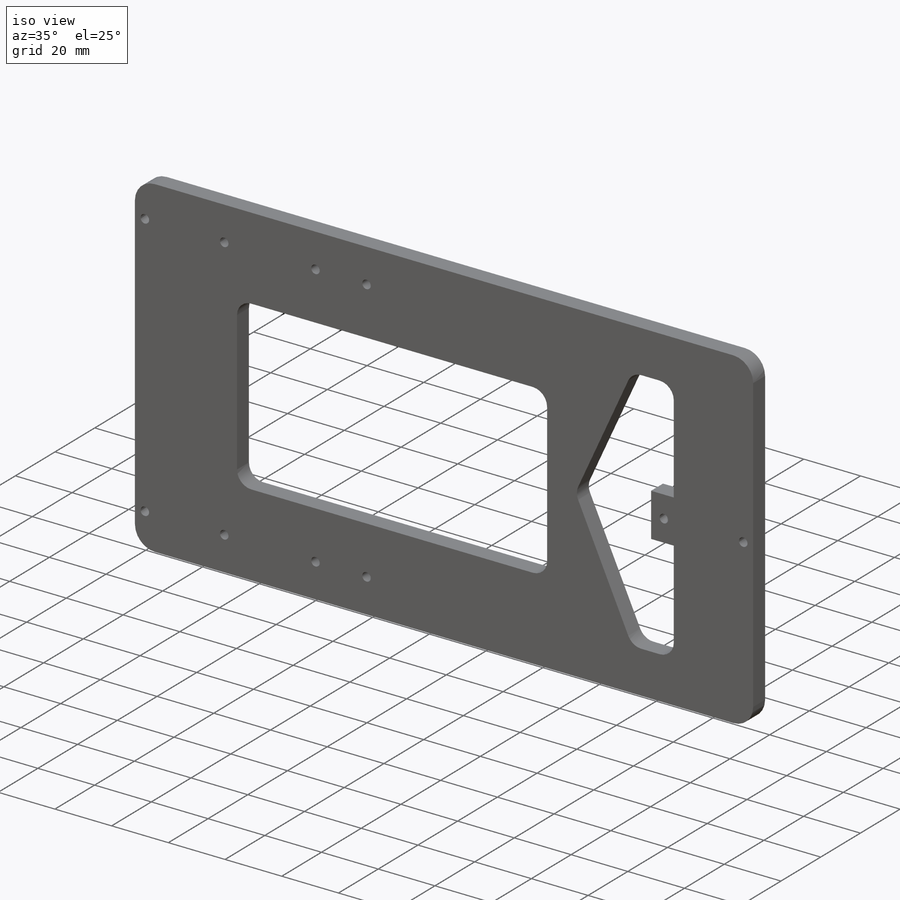
[diagram: iso view]
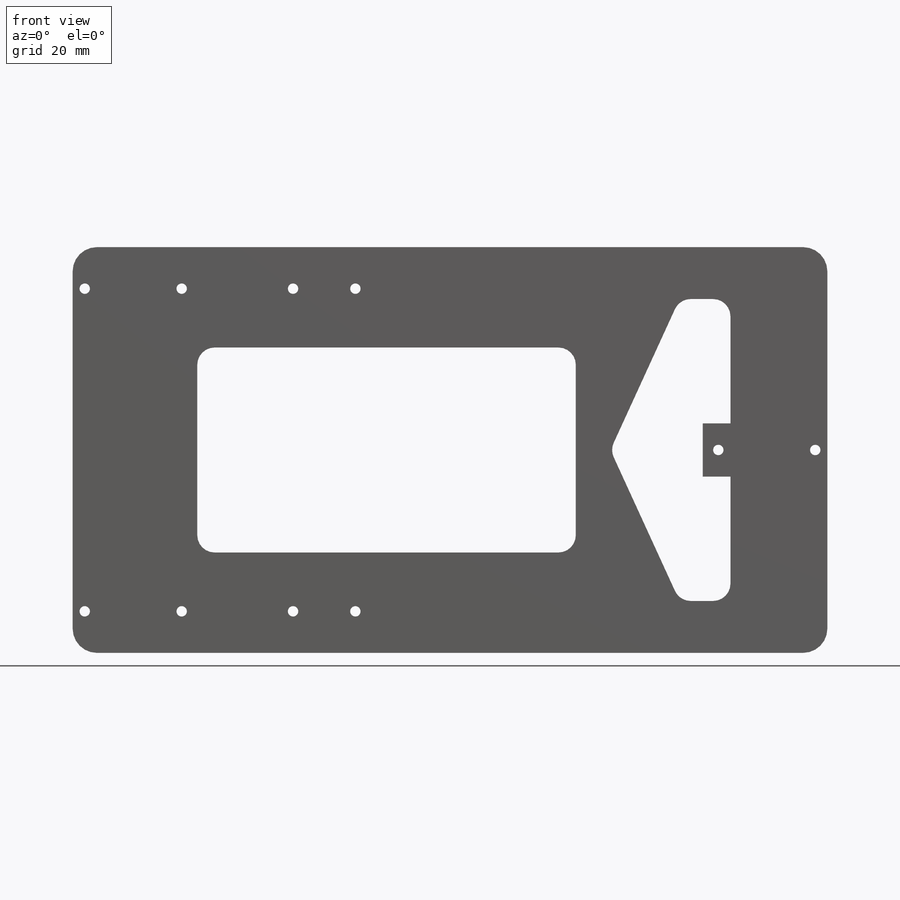
[diagram: front view]
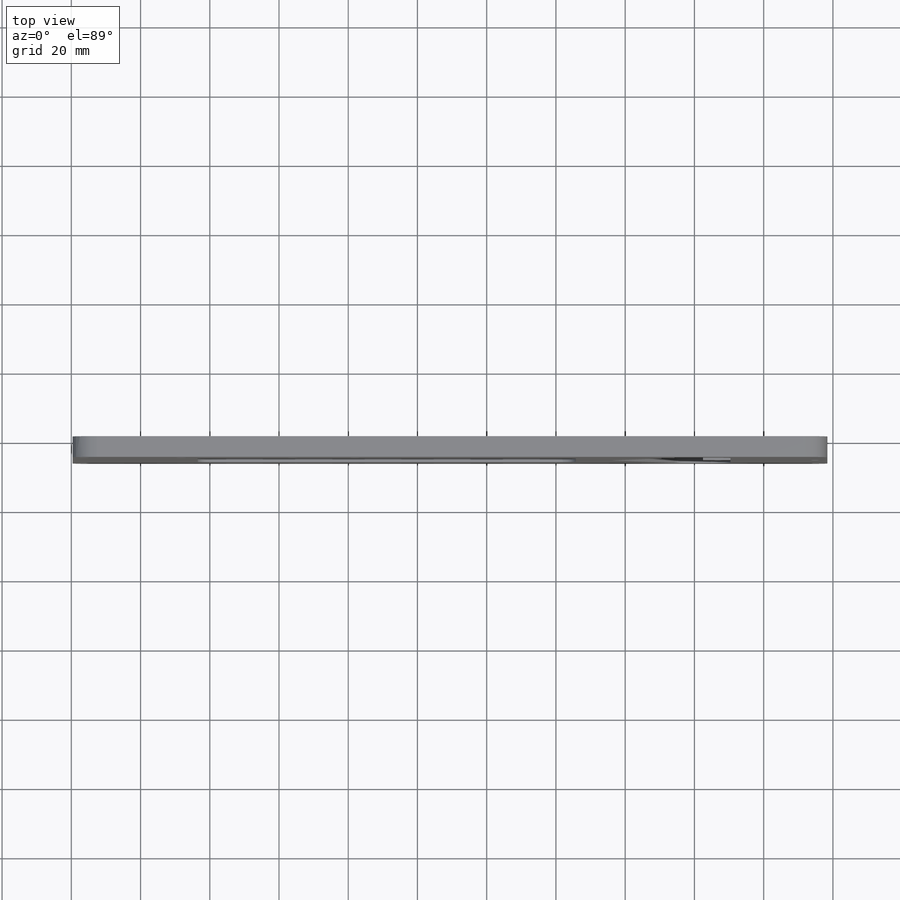
[diagram: top view]
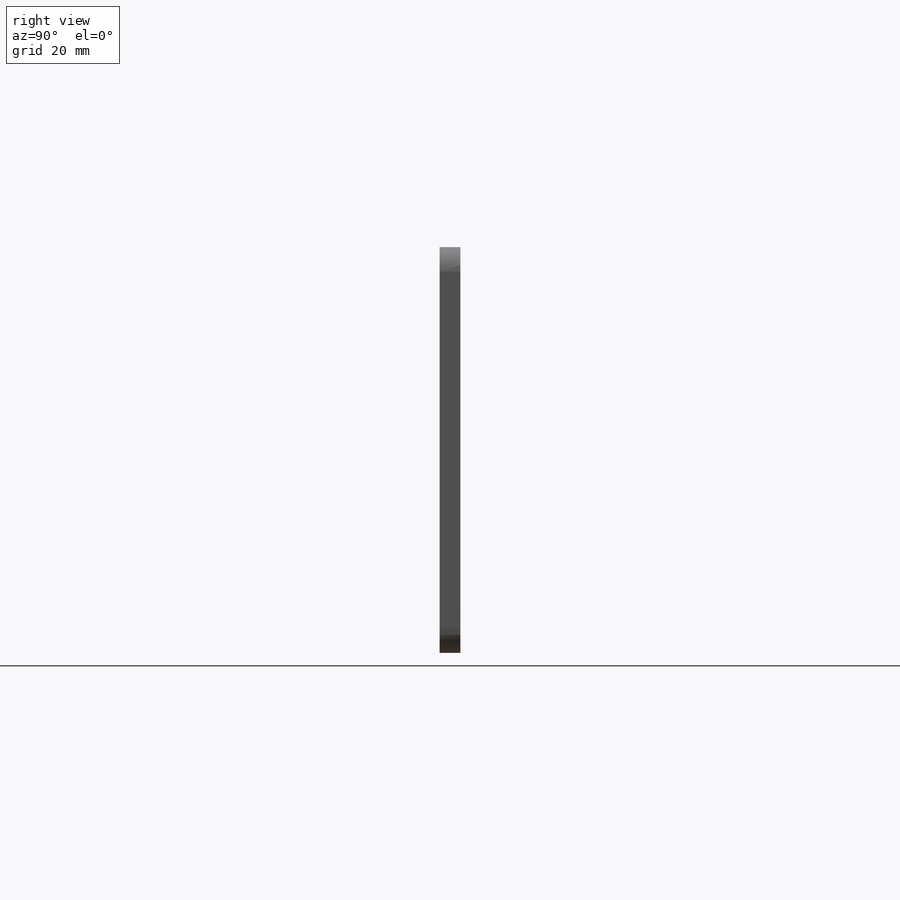
[diagram: right view]
SOLIDWORKS PART (.sldprt)
format: sldprt  version: not decoded by parser v0  size: 338,432 bytes
history: native  units: mm
features: sketch x4, cut_extrude x3, fillet x3, material x1, extrude x1 (+12 scaffold rows collapsed)
feature tree (24):
  scaffold x12  (default folders/planes/origin — collapsed)
  material  "Material <not specified>"
  sketch  "Sketch1"  dims[c1.D11=9.3mm c1.D12=5.0mm c1.D13=3.2mm c1.D14=3.2mm c1.D15=3.2mm c2.D14=3.2mm c2.D11=5.0mm c2.D20=5.0mm c2.D21=5.0mm c2.D22=5.0mm c2.D15=~6.350853mm c2.D13=7.0mm c3.D14=7.0mm c3.D15=3.0mm c3.D23=3.0mm c3.D24=3.0mm c3.D25=~1.587856mm c3.D13=5.0mm c3.D1=183.0mm c3.D2=367.2mm c3.D3=367.2mm c3.D4=0.0mm c3.D5=250.0mm c3.D6=117.2mm c4.D2=8.0mm c4.D3=8.0mm c4.D4=21.0mm c4.D5=24.0mm c4.D7=21.0mm c4.D8=24.0mm c4.D9=21.0mm c4.D10=24.0mm c4.D13=24.0mm c4.D14=16.15mm c4.D15=4.0mm c5.D14=16.15mm c5.D16=109.0mm c5.D17=109.0mm c5.D18=218.0mm c5.D19=218.0mm c5.D12=10.0mm c5.D21=10.0mm c5.D13=5.5mm c6.D14=1.0mm c6.D23=3.5mm c6.D24=3.5mm c6.D13=13.5mm]
  extrude  "Boss-Extrude1"  Depth=6mm
  sketch  "Sketch2"  dims[c1.D2=3.0mm c1.D3=3.0mm c1.D4=3.0mm c1.D5=3.0mm c1.D6=3.0mm c1.D1=~72.666667mm c2.D2=9.0mm c2.D4=9.0mm c2.D5=9.0mm c2.D6=9.0mm]
  cut_extrude  "Cut-Extrude1"  Depth=6mm
  fillet  "Fillet1"  Radius=7mm
  sketch  "Sketch3"  dims[D1=5.0mm D2=5.0mm D3=~72.666667mm]
  cut_extrude  "Cut-Extrude2"  Depth=10mm
  fillet  "Fillet3"  Radius=5mm
  sketch  "Sketch4"  dims[D1=15.0mm D2=15.0mm D3=10.0mm]
  cut_extrude  "Cut-Extrude3"  Depth=10mm
  fillet  "Fillet4"  Radius=5mm
decode coverage: 11 of 11 modeling features carry decoded parameters
note: ~ marks probable driven/reference dimensions
note: suppression state not decoded; provenance and decode notes live in map.json
